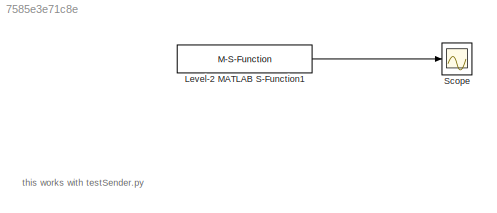
MODEL slx_7585e3e71c8e
KIND model
BLOCK [M-S-Function] Level-2 MATLAB S-Function1
  FunctionName = yarpReadVars_sfun
  Parameters = '/testSender', '/sim/in', 'var1'
  Ports = [0, 1]
BLOCK [Scope] Scope
  Floating = off
  NumInputPorts = 1
  Ports = [1]
  ShowLegends = off
ANNOTATION (root): this works with testSender.py
LINE Level-2 MATLAB S-Function1:1 -> Scope:1
